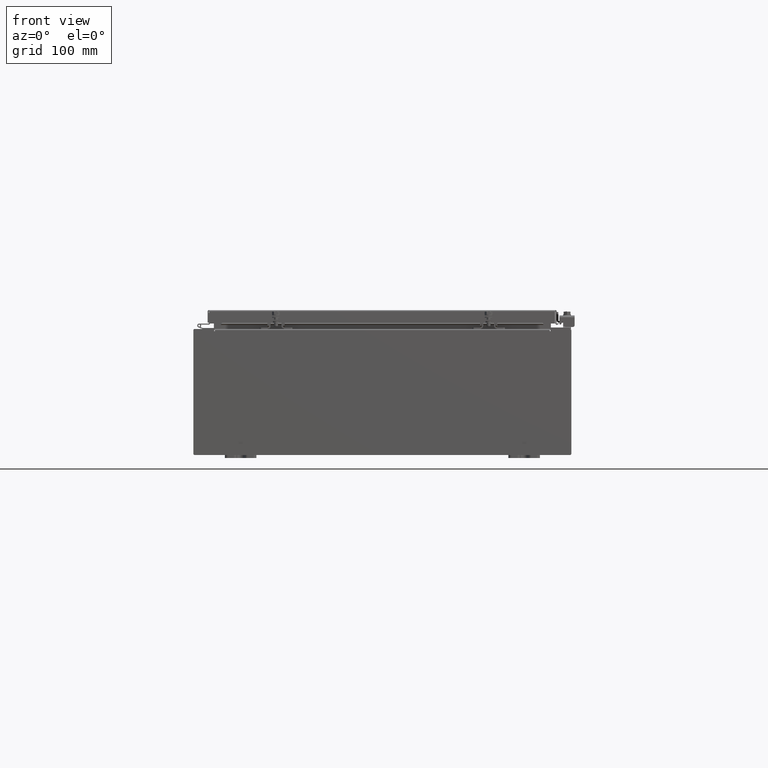
[diagram: clean part render]
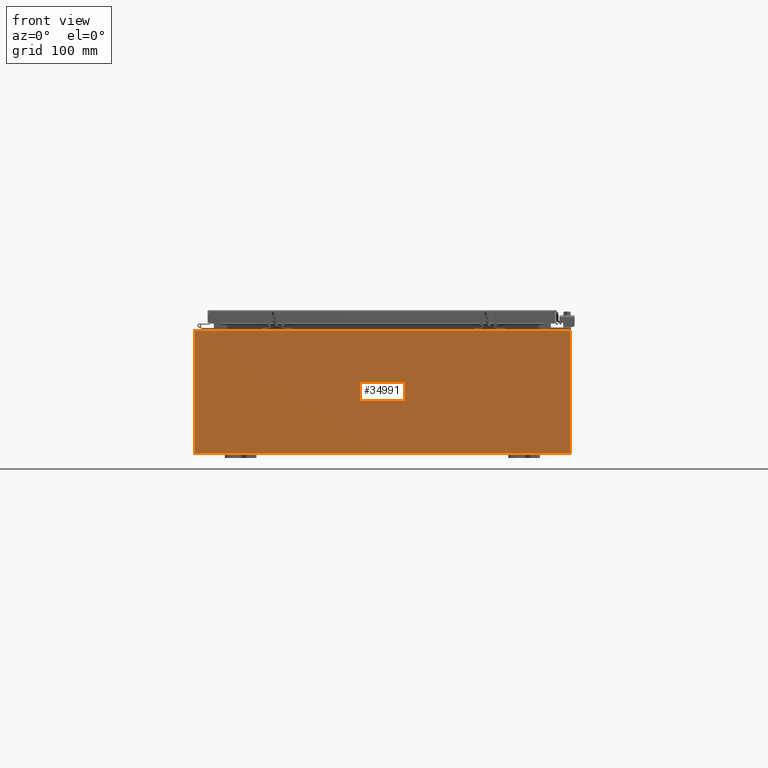
[diagram: same view with one face highlighted and labeled with its STEP entity id]
A machine part, front view. The second image highlights one B-rep face of the part: STEP entity #34991.
In plain terms, the highlighted planar face has unit normal (-0, 1, -0).
Its self-contained STEP definition (entity closure, byte-faithful):
#790 = PLANE ( 'NONE',  #10970 ) ;
#1263 = CARTESIAN_POINT ( 'NONE',  ( -11.92530000000000000, 0.0000000000000000000, 3.925299999999999600 ) ) ;
#1832 = DIRECTION ( 'NONE',  ( -4.340572780400004900E-014, 0.0000000000000000000, -1.000000000000000000 ) ) ;
#4070 = DIRECTION ( 'NONE',  ( 0.0000000000000000000, -1.000000000000000000, 0.0000000000000000000 ) ) ;
#4727 = CARTESIAN_POINT ( 'NONE',  ( -10.67455000000000200, 0.0000000000000000000, 3.925299999999999600 ) ) ;
#5194 = EDGE_CURVE ( 'NONE', #33559, #15956, #25812, .T. ) ;
#5603 = VECTOR ( 'NONE', #10265, 39.37007874015748100 ) ;
#5780 = ORIENTED_EDGE ( 'NONE', *, *, #5194, .T. ) ;
#6693 = CARTESIAN_POINT ( 'NONE',  ( -10.65587500000000200, 0.0000000000000000000, 3.874949999999999700 ) ) ;
#7955 = CARTESIAN_POINT ( 'NONE',  ( -11.92530000000000000, 0.0000000000000000000, 3.925299999999999600 ) ) ;
#8634 = CARTESIAN_POINT ( 'NONE',  ( 11.92530000000000000, 0.0000000000000000000, -3.925299999999999600 ) ) ;
#9036 = DIRECTION ( 'NONE',  ( 0.0000000000000000000, 0.0000000000000000000, 1.000000000000000000 ) ) ;
#9239 = VECTOR ( 'NONE', #15192, 39.37007874015748100 ) ;
#9475 = FACE_OUTER_BOUND ( 'NONE', #35728, .T. ) ;
#9937 = DIRECTION ( 'NONE',  ( 0.0000000000000000000, 0.0000000000000000000, -1.000000000000000000 ) ) ;
#10139 = VECTOR ( 'NONE', #37233, 39.37007874015748100 ) ;
#10265 = DIRECTION ( 'NONE',  ( 0.0000000000000000000, 0.0000000000000000000, -1.000000000000000000 ) ) ;
#10970 = AXIS2_PLACEMENT_3D ( 'NONE', #20242, #4070, #26801 ) ;
#11354 = LINE ( 'NONE', #11849, #18929 ) ;
#11469 = CARTESIAN_POINT ( 'NONE',  ( -10.67455000000000200, 0.0000000000000000000, 3.874949999999999700 ) ) ;
#11764 = EDGE_CURVE ( 'NONE', #22612, #29323, #40777, .T. ) ;
#11849 = CARTESIAN_POINT ( 'NONE',  ( -11.92530000000000000, 0.0000000000000000000, 3.925299999999999600 ) ) ;
#12804 = ORIENTED_EDGE ( 'NONE', *, *, #24148, .F. ) ;
#13104 = CARTESIAN_POINT ( 'NONE',  ( 10.67455000000000200, 0.0000000000000000000, 3.925299999999999600 ) ) ;
#13384 = VECTOR ( 'NONE', #24505, 39.37007874015748100 ) ;
#14086 = LINE ( 'NONE', #41441, #30364 ) ;
#15192 = DIRECTION ( 'NONE',  ( 0.0000000000000000000, 0.0000000000000000000, -1.000000000000000000 ) ) ;
#15956 = VERTEX_POINT ( 'NONE', #4727 ) ;
#16073 = DIRECTION ( 'NONE',  ( -0.0000000000000000000, 1.000000000000000000, -0.0000000000000000000 ) ) ;
#16173 = ORIENTED_EDGE ( 'NONE', *, *, #36817, .T. ) ;
#17214 = CARTESIAN_POINT ( 'NONE',  ( 10.67455000000000200, 0.0000000000000000000, 3.874949999999999700 ) ) ;
#18036 = CARTESIAN_POINT ( 'NONE',  ( -11.92530000000000000, 0.0000000000000000000, 3.925299999999999600 ) ) ;
#18929 = VECTOR ( 'NONE', #28054, 39.37007874015748100 ) ;
#18999 = EDGE_CURVE ( 'NONE', #35039, #22612, #26518, .T. ) ;
#19118 = ORIENTED_EDGE ( 'NONE', *, *, #18999, .T. ) ;
#19779 = LINE ( 'NONE', #7955, #10139 ) ;
#20230 = ORIENTED_EDGE ( 'NONE', *, *, #30671, .F. ) ;
#20242 = CARTESIAN_POINT ( 'NONE',  ( 0.0000000000000000000, 0.0000000000000000000, 0.0000000000000000000 ) ) ;
#20604 = VECTOR ( 'NONE', #36101, 39.37007874015748100 ) ;
#20608 = ORIENTED_EDGE ( 'NONE', *, *, #39912, .T. ) ;
#20697 = CARTESIAN_POINT ( 'NONE',  ( 10.63720000000000400, 0.0000000000000000000, 3.874949999999999700 ) ) ;
#21235 = CARTESIAN_POINT ( 'NONE',  ( -10.63720000000000400, 1.024442997624098700E-016, 3.912299999999999700 ) ) ;
#21267 = CARTESIAN_POINT ( 'NONE',  ( 10.67454999999983300, -0.0000000000000000000, -4.633366117301815000E-013 ) ) ;
#22051 = DIRECTION ( 'NONE',  ( -1.000000000000000000, -0.0000000000000000000, -0.0000000000000000000 ) ) ;
#22071 = ORIENTED_EDGE ( 'NONE', *, *, #36738, .T. ) ;
#22612 = VERTEX_POINT ( 'NONE', #8634 ) ;
#22939 = VERTEX_POINT ( 'NONE', #17214 ) ;
#23744 = ORIENTED_EDGE ( 'NONE', *, *, #11764, .T. ) ;
#23888 = ORIENTED_EDGE ( 'NONE', *, *, #30880, .F. ) ;
#24148 = EDGE_CURVE ( 'NONE', #25366, #22939, #25935, .T. ) ;
#24505 = DIRECTION ( 'NONE',  ( 1.000000000000000000, 0.0000000000000000000, 0.0000000000000000000 ) ) ;
#24923 = VECTOR ( 'NONE', #1832, 39.37007874015748100 ) ;
#25366 = VERTEX_POINT ( 'NONE', #13104 ) ;
#25408 = EDGE_CURVE ( 'NONE', #38805, #37044, #31521, .T. ) ;
#25812 = LINE ( 'NONE', #18036, #41081 ) ;
#25935 = LINE ( 'NONE', #21267, #24923 ) ;
#26039 = CARTESIAN_POINT ( 'NONE',  ( -10.63720000000000400, -0.0000000000000000000, 3.874949999999999700 ) ) ;
#26518 = LINE ( 'NONE', #37969, #9239 ) ;
#26801 = DIRECTION ( 'NONE',  ( 0.0000000000000000000, -0.0000000000000000000, -1.000000000000000000 ) ) ;
#27342 = ORIENTED_EDGE ( 'NONE', *, *, #27746, .F. ) ;
#27746 = EDGE_CURVE ( 'NONE', #37044, #41761, #35737, .T. ) ;
#28054 = DIRECTION ( 'NONE',  ( -0.0000000000000000000, -0.0000000000000000000, 1.000000000000000000 ) ) ;
#28138 = AXIS2_PLACEMENT_3D ( 'NONE', #35599, #16073, #38843 ) ;
#29323 = VERTEX_POINT ( 'NONE', #39953 ) ;
#29407 = DIRECTION ( 'NONE',  ( -0.0000000000000000000, 1.000000000000000000, -0.0000000000000000000 ) ) ;
#29730 = CARTESIAN_POINT ( 'NONE',  ( -10.63720000000000400, 1.024442997624098700E-016, 3.912299999999999700 ) ) ;
#29733 = CARTESIAN_POINT ( 'NONE',  ( -10.63720000000000400, -0.0000000000000000000, 0.0000000000000000000 ) ) ;
#30364 = VECTOR ( 'NONE', #9036, 39.37007874015748100 ) ;
#30671 = EDGE_CURVE ( 'NONE', #41761, #15956, #14086, .T. ) ;
#30880 = EDGE_CURVE ( 'NONE', #22939, #31846, #31903, .T. ) ;
#31333 = AXIS2_PLACEMENT_3D ( 'NONE', #6693, #29407, #9937 ) ;
#31521 = LINE ( 'NONE', #29733, #5603 ) ;
#31606 = VERTEX_POINT ( 'NONE', #39080 ) ;
#31645 = EDGE_CURVE ( 'NONE', #31846, #31606, #39958, .T. ) ;
#31846 = VERTEX_POINT ( 'NONE', #20697 ) ;
#31903 = CIRCLE ( 'NONE', #28138, 0.01867499999999949400 ) ;
#32818 = CARTESIAN_POINT ( 'NONE',  ( 10.63720000000000400, 0.0000000000000000000, 0.0000000000000000000 ) ) ;
#33141 = VECTOR ( 'NONE', #22051, 39.37007874015748100 ) ;
#33155 = ORIENTED_EDGE ( 'NONE', *, *, #25408, .F. ) ;
#33559 = VERTEX_POINT ( 'NONE', #1263 ) ;
#33749 = LINE ( 'NONE', #21235, #13384 ) ;
#34295 = DIRECTION ( 'NONE',  ( 1.000000000000000000, 0.0000000000000000000, 0.0000000000000000000 ) ) ;
#34991 = ADVANCED_FACE ( 'NONE', ( #9475 ), #790, .F. ) ;
#35039 = VERTEX_POINT ( 'NONE', #36755 ) ;
#35599 = CARTESIAN_POINT ( 'NONE',  ( 10.65587500000000200, 0.0000000000000000000, 3.874949999999999700 ) ) ;
#35728 = EDGE_LOOP ( 'NONE', ( #20230, #27342, #33155, #22071, #41128, #23888, #12804, #20608, #19118, #23744, #16173, #5780 ) ) ;
#35737 = CIRCLE ( 'NONE', #31333, 0.01867499999999949400 ) ;
#36101 = DIRECTION ( 'NONE',  ( 0.0000000000000000000, 0.0000000000000000000, 1.000000000000000000 ) ) ;
#36738 = EDGE_CURVE ( 'NONE', #38805, #31606, #33749, .T. ) ;
#36755 = CARTESIAN_POINT ( 'NONE',  ( 11.92530000000000000, 0.0000000000000000000, 3.925299999999999600 ) ) ;
#36817 = EDGE_CURVE ( 'NONE', #29323, #33559, #11354, .T. ) ;
#37044 = VERTEX_POINT ( 'NONE', #26039 ) ;
#37233 = DIRECTION ( 'NONE',  ( 1.000000000000000000, 0.0000000000000000000, 0.0000000000000000000 ) ) ;
#37969 = CARTESIAN_POINT ( 'NONE',  ( 11.92530000000000000, 0.0000000000000000000, 3.925299999999999600 ) ) ;
#38805 = VERTEX_POINT ( 'NONE', #29730 ) ;
#38843 = DIRECTION ( 'NONE',  ( 0.0000000000000000000, 0.0000000000000000000, -1.000000000000000000 ) ) ;
#39080 = CARTESIAN_POINT ( 'NONE',  ( 10.63720000000000400, 0.0000000000000000000, 3.912299999999999700 ) ) ;
#39912 = EDGE_CURVE ( 'NONE', #25366, #35039, #19779, .T. ) ;
#39953 = CARTESIAN_POINT ( 'NONE',  ( -11.92530000000000000, 0.0000000000000000000, -3.925299999999999600 ) ) ;
#39958 = LINE ( 'NONE', #32818, #20604 ) ;
#40777 = LINE ( 'NONE', #41544, #33141 ) ;
#41081 = VECTOR ( 'NONE', #34295, 39.37007874015748100 ) ;
#41128 = ORIENTED_EDGE ( 'NONE', *, *, #31645, .F. ) ;
#41441 = CARTESIAN_POINT ( 'NONE',  ( -10.67455000000000200, -0.0000000000000000000, 0.0000000000000000000 ) ) ;
#41544 = CARTESIAN_POINT ( 'NONE',  ( -11.92530000000000000, 0.0000000000000000000, -3.925299999999999600 ) ) ;
#41761 = VERTEX_POINT ( 'NONE', #11469 ) ;